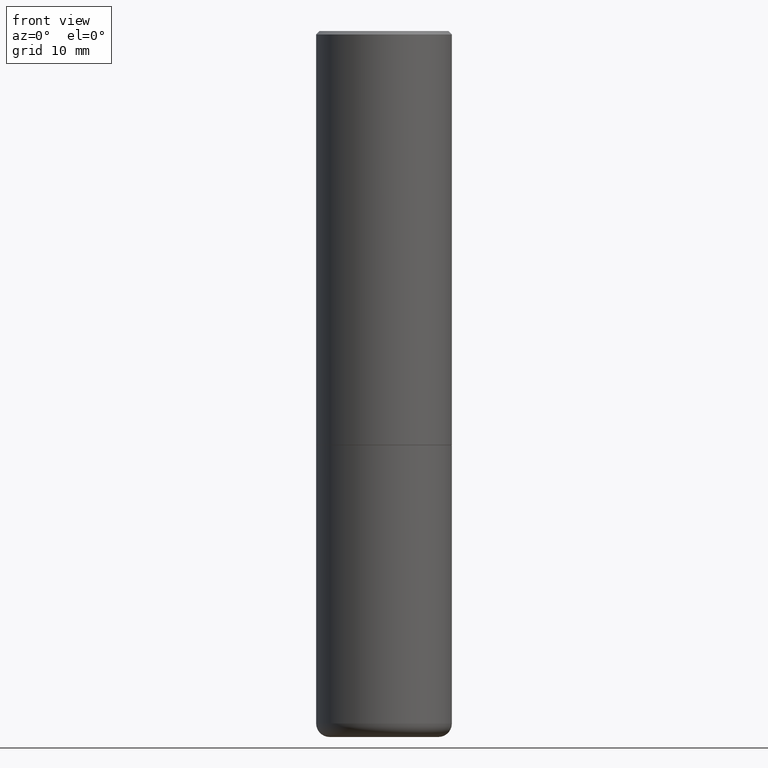
[diagram: clean part render]
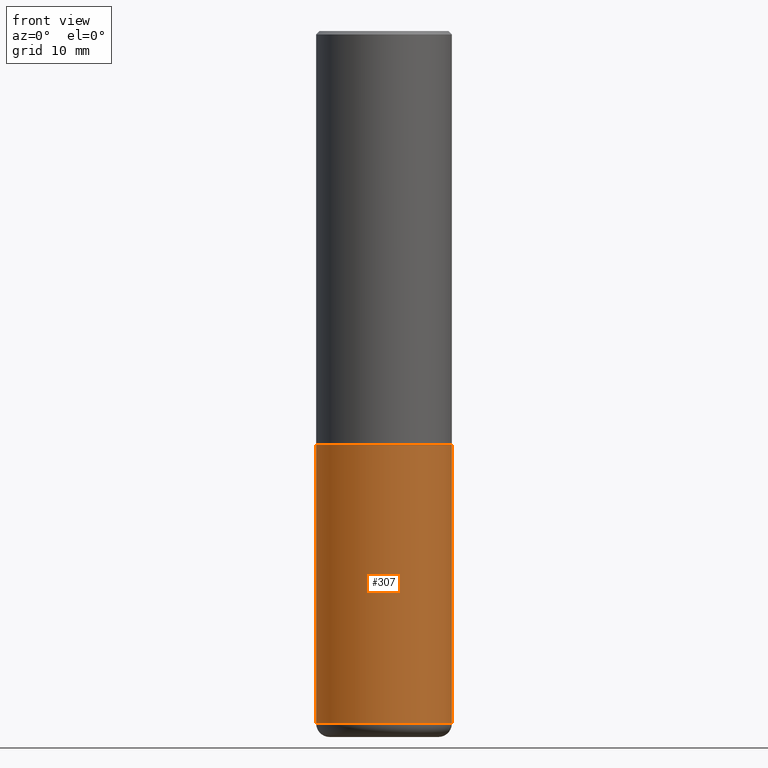
[diagram: same view with one face highlighted and labeled with its STEP entity id]
A machine part, front view. The second image highlights one B-rep face of the part: STEP entity #307.
In plain terms, the highlighted cylindrical surface (partial cylindrical patch) has radius 10 mm, axis along (-0, 0, 1).
Its self-contained STEP definition (entity closure, byte-faithful):
#21 = VERTEX_POINT ( 'NONE', #66 ) ;
#22 = ORIENTED_EDGE ( 'NONE', *, *, #339, .T. ) ;
#27 = ORIENTED_EDGE ( 'NONE', *, *, #249, .F. ) ;
#28 = CARTESIAN_POINT ( 'NONE',  ( 9.820513631878272860E-29, -1.402109076052630500E-14, -4.015800000000000480 ) ) ;
#33 = CARTESIAN_POINT ( 'NONE',  ( 0.3937000000000000499, -2.749192406205083217E-15, 1.919750796630860172E-29 ) ) ;
#41 = DIRECTION ( 'NONE',  ( 1.000000000000000000, -6.982962677686265133E-15, 0.000000000000000000 ) ) ;
#55 = LINE ( 'NONE', #139, #216 ) ;
#64 = VERTEX_POINT ( 'NONE', #243 ) ;
#66 = CARTESIAN_POINT ( 'NONE',  ( -0.3937000000000000499, -8.405709421258487133E-15, -2.401600000000000179 ) ) ;
#70 = VERTEX_POINT ( 'NONE', #232 ) ;
#71 = CARTESIAN_POINT ( 'NONE',  ( 0.3937000000000000499, -1.113433398957078206E-14, -2.401600000000000179 ) ) ;
#81 = CIRCLE ( 'NONE', #271, 0.3937000000000000499 ) ;
#96 = CYLINDRICAL_SURFACE ( 'NONE', #221, 0.3937000000000000499 ) ;
#137 = EDGE_CURVE ( 'NONE', #64, #183, #257, .T. ) ;
#139 = CARTESIAN_POINT ( 'NONE',  ( -0.3937000000000000499, 2.797406750687514786E-15, -1.936584745033356735E-29 ) ) ;
#149 = AXIS2_PLACEMENT_3D ( 'NONE', #214, #329, #41 ) ;
#155 = DIRECTION ( 'NONE',  ( -2.445468806185136877E-29, 3.491481338843145188E-15, 1.000000000000000000 ) ) ;
#183 = VERTEX_POINT ( 'NONE', #71 ) ;
#196 = EDGE_CURVE ( 'NONE', #21, #183, #201, .T. ) ;
#197 = DIRECTION ( 'NONE',  ( -2.445468806185136597E-29, 3.491481338843145583E-15, 1.000000000000000000 ) ) ;
#201 = CIRCLE ( 'NONE', #149, 0.3937000000000000499 ) ;
#206 = DIRECTION ( 'NONE',  ( 1.000000000000000000, -6.982962677686265922E-15, 4.876176775795935793E-29 ) ) ;
#214 = CARTESIAN_POINT ( 'NONE',  ( 5.873037884934224349E-29, -8.385141583365698841E-15, -2.401600000000000179 ) ) ;
#216 = VECTOR ( 'NONE', #309, 39.37007874015748143 ) ;
#221 = AXIS2_PLACEMENT_3D ( 'NONE', #322, #264, #206 ) ;
#232 = CARTESIAN_POINT ( 'NONE',  ( -0.3936999999999998279, -1.122368400983879100E-14, -4.015800000000000480 ) ) ;
#243 = CARTESIAN_POINT ( 'NONE',  ( 0.3936999999999998279, -1.677028316673138822E-14, -4.015800000000000480 ) ) ;
#249 = EDGE_CURVE ( 'NONE', #70, #21, #55, .T. ) ;
#257 = LINE ( 'NONE', #33, #341 ) ;
#264 = DIRECTION ( 'NONE',  ( -2.445468806185136597E-29, 3.491481338843145583E-15, 1.000000000000000000 ) ) ;
#271 = AXIS2_PLACEMENT_3D ( 'NONE', #28, #197, #367 ) ;
#296 = FACE_OUTER_BOUND ( 'NONE', #377, .T. ) ;
#307 = ADVANCED_FACE ( 'NONE', ( #296 ), #96, .T. ) ;
#309 = DIRECTION ( 'NONE',  ( -2.445468806185136877E-29, 3.491481338843145188E-15, 1.000000000000000000 ) ) ;
#322 = CARTESIAN_POINT ( 'NONE',  ( 0.000000000000000000, 0.000000000000000000, 0.000000000000000000 ) ) ;
#329 = DIRECTION ( 'NONE',  ( -2.445468806185136597E-29, 3.491481338843145583E-15, 1.000000000000000000 ) ) ;
#339 = EDGE_CURVE ( 'NONE', #70, #64, #81, .T. ) ;
#341 = VECTOR ( 'NONE', #155, 39.37007874015748143 ) ;
#358 = ORIENTED_EDGE ( 'NONE', *, *, #137, .T. ) ;
#367 = DIRECTION ( 'NONE',  ( 1.000000000000000000, -6.982962677686267499E-15, 0.000000000000000000 ) ) ;
#371 = ORIENTED_EDGE ( 'NONE', *, *, #196, .F. ) ;
#377 = EDGE_LOOP ( 'NONE', ( #27, #22, #358, #371 ) ) ;